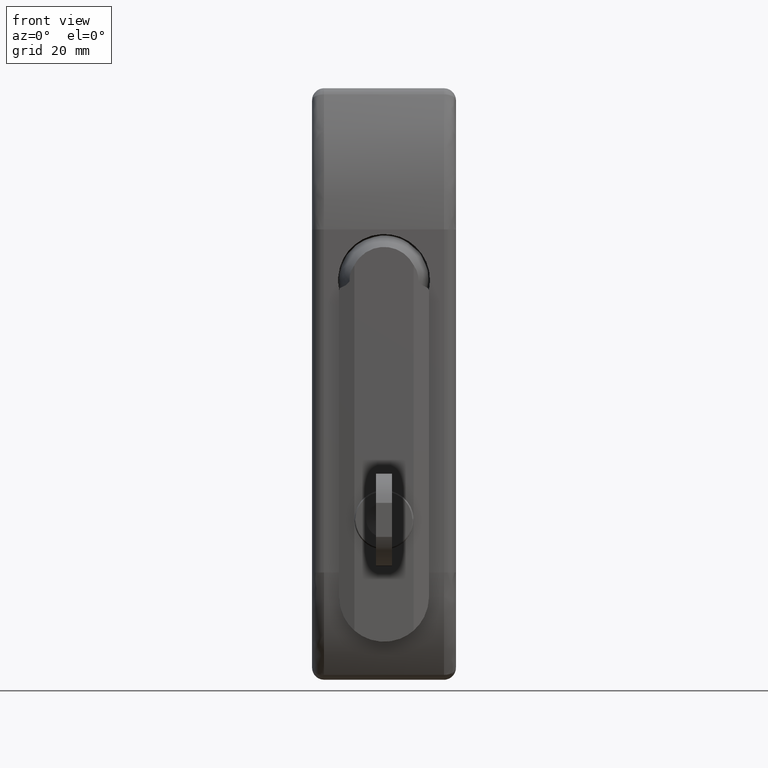
[diagram: clean part render]
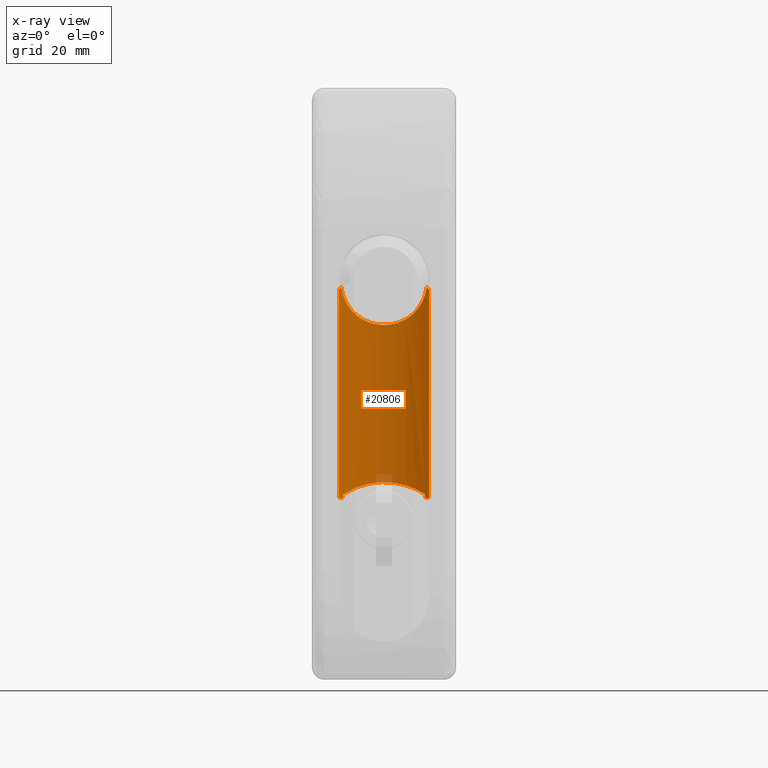
[diagram: x-ray — body ghosted, one internal face saturated and labeled with its STEP entity id]
A machine part, front view, then the same camera in x-ray: the body is ghosted and one INTERNAL B-rep face — a face not visible from any outside direction — is saturated and labeled: STEP entity #20806.
In plain terms, the highlighted face is a freeform B-spline surface patch.
Its self-contained STEP definition (entity closure, byte-faithful):
#20192=CARTESIAN_POINT('',(-10.684575626330240,-9.924582449700880,-30.098034766009349));
#20193=VERTEX_POINT('',#20192);
#20199=CARTESIAN_POINT('',(-11.250000000000000,-10.299999999999780,-30.998670111196152));
#20200=VERTEX_POINT('',#20199);
#20201=CARTESIAN_POINT('',(-11.250000000000000,-10.299999999999780,-30.998670111196152));
#20202=CARTESIAN_POINT('',(-11.250000000000011,-10.299999999999780,-30.898014862306550));
#20203=CARTESIAN_POINT('',(-11.235107902003250,-10.289713467947880,-30.800481930825239));
#20204=CARTESIAN_POINT('',(-11.191867623685150,-10.260095424611370,-30.659090352066311));
#20205=CARTESIAN_POINT('',(-11.174319938500080,-10.248103135369600,-30.614085594023550));
#20206=CARTESIAN_POINT('',(-11.133543723698420,-10.220363949491780,-30.527901497256341));
#20207=CARTESIAN_POINT('',(-11.110253436581560,-10.204575250670811,-30.486638649242639));
#20208=CARTESIAN_POINT('',(-11.032467774705840,-10.152140299422250,-30.368913845431809));
#20209=CARTESIAN_POINT('',(-10.972085965724739,-10.111791843752130,-30.301068481013480));
#20210=CARTESIAN_POINT('',(-10.836317090186871,-10.022410192647611,-30.183631188147110));
#20211=CARTESIAN_POINT('',(-10.762861120431049,-9.974651799822501,-30.135809174723530));
#20212=CARTESIAN_POINT('',(-10.684575626330240,-9.924582449700869,-30.098034766009452));
#20213=B_SPLINE_CURVE_WITH_KNOTS('',3,(#20201,#20202,#20203,#20204,#20205,#20206,#20207,#20208,#20209,#20210,#20211,#20212),.UNSPECIFIED.,.F.,.U.,(4,2,2,2,2,4),(0.0,0.250000000000005,0.375000000000007,0.500000000000009,0.750000000000004,1.0),.UNSPECIFIED.);
#20214=EDGE_CURVE('',#20200,#20193,#20213,.T.);
#20313=CARTESIAN_POINT('',(10.250000000000000,-9.654475297919881,-82.849999999997294));
#20314=VERTEX_POINT('',#20313);
#20323=CARTESIAN_POINT('',(10.250000000000000,-9.654475297919630,-81.849999999997294));
#20324=VERTEX_POINT('',#20323);
#20330=CARTESIAN_POINT('',(10.250000000000000,-9.654475297919881,-82.849999999997294));
#20331=CARTESIAN_POINT('',(10.250000000000000,-9.654475297919630,-81.849999999997294));
#20332=QUASI_UNIFORM_CURVE('',1,(#20330,#20331),.UNSPECIFIED.,.F.,.U.);
#20333=EDGE_CURVE('',#20314,#20324,#20332,.T.);
#20354=CARTESIAN_POINT('',(-10.250000000000000,-9.654475297919820,-81.849999999997294));
#20355=VERTEX_POINT('',#20354);
#20361=CARTESIAN_POINT('',(-10.250000000000000,-9.654475297919820,-81.849999999997294));
#20362=CARTESIAN_POINT('',(-9.538361291864314,-9.224789416207219,-81.394403065185656));
#20363=CARTESIAN_POINT('',(-8.789633059052802,-8.833438241366558,-80.981548758525207));
#20364=CARTESIAN_POINT('',(-7.605034500643767,-8.311166618198913,-80.432024187220463));
#20365=CARTESIAN_POINT('',(-7.199878326106386,-8.147905179384768,-80.260523864431505));
#20366=CARTESIAN_POINT('',(-6.575523507059780,-7.920610791255863,-80.022029249957455));
#20367=CARTESIAN_POINT('',(-6.364631455192290,-7.847782705514537,-79.945661329211077));
#20368=CARTESIAN_POINT('',(-6.043946044436363,-7.743154503620700,-79.836004868148748));
#20369=CARTESIAN_POINT('',(-5.936326055952771,-7.709047731075165,-79.800268958098073));
#20370=CARTESIAN_POINT('',(-5.719601421984231,-7.642411585935798,-79.730467359745376));
#20371=CARTESIAN_POINT('',(-5.610578036364391,-7.609910301570487,-79.696431115572736));
#20372=CARTESIAN_POINT('',(-4.627754698936696,-7.326114063975935,-79.399300810308560));
#20373=CARTESIAN_POINT('',(-3.734178971722286,-7.132860638250640,-79.197437211442804));
#20374=CARTESIAN_POINT('',(-2.362566142417454,-6.935822490633063,-78.991713444459620));
#20375=CARTESIAN_POINT('',(-1.900134377044954,-6.885670900091028,-78.939380384370111));
#20376=CARTESIAN_POINT('',(-1.198280151054671,-6.834847314651955,-78.886352467830008));
#20377=CARTESIAN_POINT('',(-0.962959435145621,-6.821977848608026,-78.872926723708204));
#20378=CARTESIAN_POINT('',(-0.607863262890874,-6.808964763707169,-78.859351566629968));
#20379=CARTESIAN_POINT('',(-0.488953759730555,-6.805673581651407,-78.855918352791093));
#20380=CARTESIAN_POINT('',(-0.251595334593891,-6.801240826976947,-78.851294337404212));
#20381=CARTESIAN_POINT('',(-0.133133169769200,-6.800094348993105,-78.850098418370294));
#20382=CARTESIAN_POINT('',(0.458104799473274,-6.799650538521388,-78.849635465846390));
#20383=CARTESIAN_POINT('',(0.927666811936397,-6.816196309379087,-78.866892965119888));
#20384=CARTESIAN_POINT('',(1.860171767200827,-6.881906665783935,-78.935452484092991));
#20385=CARTESIAN_POINT('',(2.323114220655559,-6.931073674714743,-78.986757009320485));
#20386=CARTESIAN_POINT('',(3.242503967764308,-7.061381777256798,-79.122805918159216));
#20387=CARTESIAN_POINT('',(3.698951071854099,-7.142523937400106,-79.207551150027413));
#20388=CARTESIAN_POINT('',(4.265464104785588,-7.263831732036604,-79.334347510353425));
#20389=CARTESIAN_POINT('',(4.378635067991453,-7.289107578060995,-79.360771375615087));
#20390=CARTESIAN_POINT('',(4.603423241998200,-7.341373907823672,-79.415422348196401));
#20391=CARTESIAN_POINT('',(4.938687105314152,-7.422429847319856,-79.500191999756240));
#20392=CARTESIAN_POINT('',(5.268317102753013,-7.511281551807135,-79.593169880197721));
#20393=CARTESIAN_POINT('',(6.355029819196898,-7.824105665724342,-79.920684437945781));
#20394=CARTESIAN_POINT('',(7.186051182653815,-8.127355731006407,-80.238638429061098));
#20395=CARTESIAN_POINT('',(8.181829097447961,-8.565250720239197,-80.699362850352202));
#20396=CARTESIAN_POINT('',(8.378981618729753,-8.655865770760734,-80.794773364879575));
#20397=CARTESIAN_POINT('',(8.768320832954588,-8.842546068333277,-80.991508461296206));
#20398=CARTESIAN_POINT('',(8.960085245787907,-8.938401303232402,-81.092611613808472));
#20399=CARTESIAN_POINT('',(9.526985080405153,-9.233199955259003,-81.403856109660595));
#20400=CARTESIAN_POINT('',(9.893739943267736,-9.439366261767210,-81.621919391132934));
#20401=CARTESIAN_POINT('',(10.250000000000000,-9.654475297919859,-81.849999999997294));
#20402=B_SPLINE_CURVE_WITH_KNOTS('',3,(#20361,#20362,#20363,#20364,#20365,#20366,#20367,#20368,#20369,#20370,#20371,#20372,#20373,#20374,#20375,#20376,#20377,#20378,#20379,#20380,#20381,#20382,#20383,#20384,#20385,#20386,#20387,#20388,#20389,#20390,#20391,#20392,#20393,#20394,#20395,#20396,#20397,#20398,#20399,#20400,#20401),.UNSPECIFIED.,.F.,.U.,(4,2,2,2,2,2,2,2,2,2,2,2,2,2,2,1,2,2,2,2,4),(0.0,0.125000000000002,0.187500000000002,0.218750000000003,0.234375000000003,0.250000000000003,0.375000000000002,0.437500000000001,0.468750000000001,0.484375000000001,0.500000000000000,0.562500000000000,0.624999999999999,0.687499999999998,0.703124999999998,0.718749999999998,0.749999999999998,0.874999999999998,0.906249999999999,0.937499999999999,1.0),.UNSPECIFIED.);
#20403=EDGE_CURVE('',#20355,#20324,#20402,.T.);
#20415=CARTESIAN_POINT('',(-10.250000000000000,-9.654475297919911,-82.849999999997294));
#20416=VERTEX_POINT('',#20415);
#20422=CARTESIAN_POINT('',(-10.250000000000000,-9.654475297919820,-81.849999999997294));
#20423=CARTESIAN_POINT('',(-10.250000000000000,-9.654475297919911,-82.849999999997294));
#20424=QUASI_UNIFORM_CURVE('',1,(#20422,#20423),.UNSPECIFIED.,.F.,.U.);
#20425=EDGE_CURVE('',#20355,#20416,#20424,.T.);
#20505=CARTESIAN_POINT('',(11.250000000000000,-10.300000000000001,-82.849999999997294));
#20506=VERTEX_POINT('',#20505);
#20514=CARTESIAN_POINT('',(10.249999999999989,-9.654475297919882,-82.849999999997294));
#20515=CARTESIAN_POINT('',(10.759690747465052,-9.962225446585943,-82.849999999997294));
#20516=CARTESIAN_POINT('',(11.250000000000060,-10.299999999999891,-82.849999999997294));
#20524=(BOUNDED_CURVE()B_SPLINE_CURVE(2,(#20514,#20515,#20516),.UNSPECIFIED.,.F.,.U.)CURVE()GEOMETRIC_REPRESENTATION_ITEM()QUASI_UNIFORM_CURVE()RATIONAL_B_SPLINE_CURVE((1.0,0.999549572070620,1.0))REPRESENTATION_ITEM(''));
#20525=EDGE_CURVE('',#20314,#20506,#20524,.T.);
#20537=CARTESIAN_POINT('',(-11.250000000000000,-10.299999999999780,-82.849999999997294));
#20538=VERTEX_POINT('',#20537);
#20544=CARTESIAN_POINT('',(-11.249999999999970,-10.299999999999830,-82.849999999997294));
#20545=CARTESIAN_POINT('',(-10.759690747464996,-9.962225446585903,-82.849999999997294));
#20546=CARTESIAN_POINT('',(-10.250000000000020,-9.654475297919893,-82.849999999997294));
#20554=(BOUNDED_CURVE()B_SPLINE_CURVE(2,(#20544,#20545,#20546),.UNSPECIFIED.,.F.,.U.)CURVE()GEOMETRIC_REPRESENTATION_ITEM()QUASI_UNIFORM_CURVE()RATIONAL_B_SPLINE_CURVE((1.0,0.999549572070620,1.0))REPRESENTATION_ITEM(''));
#20555=EDGE_CURVE('',#20538,#20416,#20554,.T.);
#20572=CARTESIAN_POINT('',(-11.250000000000000,-10.299999999999780,-30.998670111196152));
#20573=CARTESIAN_POINT('',(-11.250000000000000,-10.299999999999780,-82.849999999997294));
#20574=QUASI_UNIFORM_CURVE('',1,(#20572,#20573),.UNSPECIFIED.,.F.,.U.);
#20575=EDGE_CURVE('',#20200,#20538,#20574,.T.);
#20596=CARTESIAN_POINT('',(-10.678615359158099,-9.920771916873139,-30.095158810881451));
#20597=VERTEX_POINT('',#20596);
#20611=CARTESIAN_POINT('',(-10.684575626330220,-9.924582449700875,-30.098034766009331));
#20612=CARTESIAN_POINT('',(-10.681595832585169,-9.922676651723553,-30.096596952425838));
#20613=CARTESIAN_POINT('',(-10.678615359158091,-9.920771916873134,-30.095158810881362));
#20621=(BOUNDED_CURVE()B_SPLINE_CURVE(2,(#20611,#20612,#20613),.UNSPECIFIED.,.F.,.U.)CURVE()GEOMETRIC_REPRESENTATION_ITEM()QUASI_UNIFORM_CURVE()RATIONAL_B_SPLINE_CURVE((1.0,0.999999984369625,1.0))REPRESENTATION_ITEM(''));
#20622=EDGE_CURVE('',#20193,#20597,#20621,.T.);
#20651=CARTESIAN_POINT('',(11.684509885826170,-10.608019824559911,-28.776287781153250));
#20652=CARTESIAN_POINT('',(11.684509885826170,-10.608019824559911,-84.201842805468416));
#20653=CARTESIAN_POINT('',(-0.367118777601555,-1.819203844676778,-28.776287781153247));
#20654=CARTESIAN_POINT('',(-0.367118777601555,-1.819203844676778,-84.201842805468402));
#20655=CARTESIAN_POINT('',(-12.153440610693195,-10.960738585418575,-28.776287781153240));
#20656=CARTESIAN_POINT('',(-12.153440610693195,-10.960738585418575,-84.201842805468416));
#20664=(BOUNDED_SURFACE()B_SPLINE_SURFACE(1,2,((#20651,#20653,#20655),(#20652,#20654,#20656)),.UNSPECIFIED.,.F.,.F.,.U.)B_SPLINE_SURFACE_WITH_KNOTS((2,2),(3,3),(0.0,55.425555024315180),(0.0,26.501815270350239),.UNSPECIFIED.)GEOMETRIC_REPRESENTATION_ITEM()RATIONAL_B_SPLINE_SURFACE(((1.0,0.798929562094057,0.999412754713367),(1.0,0.798929562094057,0.999412754713367)))REPRESENTATION_ITEM('')SURFACE());
#20665=ORIENTED_EDGE('',*,*,#20622,.T.);
#20666=CARTESIAN_POINT('',(10.678615359158140,-9.920771916873161,-30.095158810881149));
#20667=VERTEX_POINT('',#20666);
#20668=CARTESIAN_POINT('',(-10.678615359158099,-9.920771916873131,-30.095158810881451));
#20669=CARTESIAN_POINT('',(-10.631021573617421,-9.890356097305993,-30.420396388976322));
#20670=CARTESIAN_POINT('',(-10.570803262406359,-9.852138650620608,-30.743068664540001));
#20671=CARTESIAN_POINT('',(-10.461087863820440,-9.783679032267688,-31.223215404583190));
#20672=CARTESIAN_POINT('',(-10.421278934623199,-9.759003597830628,-31.382619856794150));
#20673=CARTESIAN_POINT('',(-10.356599250705139,-9.719279219233480,-31.620750285541881));
#20674=CARTESIAN_POINT('',(-10.334211253671940,-9.705585900144316,-31.699964331226631));
#20675=CARTESIAN_POINT('',(-10.287755820016480,-9.677307740422315,-31.858064615282050));
#20676=CARTESIAN_POINT('',(-10.263671870605741,-9.662713133124303,-31.936995655338482));
#20677=CARTESIAN_POINT('',(-10.040406284323961,-9.528105590713524,-32.642333337500098));
#20678=CARTESIAN_POINT('',(-9.794363504149992,-9.384320987488595,-33.239775183343532));
#20679=CARTESIAN_POINT('',(-9.353223494039964,-9.143552447275450,-34.094259883594461));
#20680=CARTESIAN_POINT('',(-9.194086240545616,-9.059100961955121,-34.372100356373458));
#20681=CARTESIAN_POINT('',(-8.936450969041763,-8.927470124598374,-34.778349474082283));
#20682=CARTESIAN_POINT('',(-8.847412688693368,-8.882767610141242,-34.912011514728107));
#20683=CARTESIAN_POINT('',(-8.662820211130200,-8.791938168759311,-35.175791800037857));
#20684=CARTESIAN_POINT('',(-8.567610599790346,-8.745984897036744,-35.305394832484922));
#20685=CARTESIAN_POINT('',(-8.079479772407881,-8.515402197410333,-35.938843105444903));
#20686=CARTESIAN_POINT('',(-7.648229106704954,-8.327197436941033,-36.402728082662101));
#20687=CARTESIAN_POINT('',(-6.937940519864580,-8.051537331711861,-37.036958356682952));
#20688=CARTESIAN_POINT('',(-6.690552451402221,-7.960748130665716,-37.238040738637991));
#20689=CARTESIAN_POINT('',(-6.367319896217280,-7.849915926661139,-37.476285168489127));
#20690=CARTESIAN_POINT('',(-6.301972086499350,-7.827882433262628,-37.523277276875092));
#20691=CARTESIAN_POINT('',(-6.169849955952473,-7.784114575570912,-37.615937346634247));
#20692=CARTESIAN_POINT('',(-6.103021067757704,-7.762363761680561,-37.661638824745282));
#20693=CARTESIAN_POINT('',(-5.901440189348031,-7.697951801902709,-37.796030993410902));
#20694=CARTESIAN_POINT('',(-5.765279526733072,-7.656024339313021,-37.882239601056973));
#20695=CARTESIAN_POINT('',(-5.075661786225274,-7.451938412182918,-38.296715398802448));
#20696=CARTESIAN_POINT('',(-4.495966844421091,-7.306418627277433,-38.575725470160428));
#20697=CARTESIAN_POINT('',(-3.582999061308267,-7.123909607705410,-38.916945782517153));
#20698=CARTESIAN_POINT('',(-3.271399673201216,-7.069036793041329,-39.017717887943313));
#20699=CARTESIAN_POINT('',(-2.872309001243609,-7.008955033376244,-39.126923377631812));
#20700=CARTESIAN_POINT('',(-2.791909391335388,-6.997351770536082,-39.147947547592352));
#20701=CARTESIAN_POINT('',(-2.631032892037271,-6.975146029261022,-39.188076392219571));
#20702=CARTESIAN_POINT('',(-2.389360729969992,-6.943298572931575,-39.245462890001761));
#20703=CARTESIAN_POINT('',(-2.146625497068132,-6.915853140842827,-39.294532494073543));
#20704=CARTESIAN_POINT('',(-1.659753487090429,-6.866888282288065,-39.381775393617872));
#20705=CARTESIAN_POINT('',(-1.333306281972363,-6.842142944869421,-39.425436005351948));
#20706=CARTESIAN_POINT('',(-0.676694308908974,-6.808823105369528,-39.484108535004808));
#20707=CARTESIAN_POINT('',(-0.346529696079474,-6.800247523050325,-39.499121420985752));
#20708=CARTESIAN_POINT('',(0.151564930168576,-6.799884153721171,-39.499758727278191));
#20709=CARTESIAN_POINT('',(0.318071833184422,-6.801847421994142,-39.496317213167167));
#20710=CARTESIAN_POINT('',(0.568559855751598,-6.807976361005101,-39.485557839286493));
#20711=CARTESIAN_POINT('',(0.652301186455663,-6.810555301894516,-39.481028889720378));
#20712=CARTESIAN_POINT('',(0.819248291847845,-6.816753884257727,-39.470134109453518));
#20713=CARTESIAN_POINT('',(0.902471174247298,-6.820371980338475,-39.463770995409583));
#20714=CARTESIAN_POINT('',(1.317347724772913,-6.841014290557044,-39.427427795725428));
#20715=CARTESIAN_POINT('',(1.645296070826217,-6.865687434836865,-39.383900825288293));
#20716=CARTESIAN_POINT('',(2.293545713327226,-6.930387196466644,-39.268650043418631));
#20717=CARTESIAN_POINT('',(2.613846269923262,-6.970416007417001,-39.196923894963113));
#20718=CARTESIAN_POINT('',(3.246861371403184,-7.064995684232031,-39.025108405862213));
#20719=CARTESIAN_POINT('',(3.559575952433626,-7.119548554910668,-38.925020345568633));
#20720=CARTESIAN_POINT('',(4.177295859311042,-7.242411609087649,-38.695467701407999));
#20721=CARTESIAN_POINT('',(4.477445463137869,-7.309749966623940,-38.567801785240917));
#20722=CARTESIAN_POINT('',(5.060854010685270,-7.454300816901626,-38.287577091955882));
#20723=CARTESIAN_POINT('',(5.344176490375343,-7.531530448477963,-38.134990107762263));
#20724=CARTESIAN_POINT('',(5.894548226552169,-7.694156239110322,-37.804878312722131));
#20725=CARTESIAN_POINT('',(6.161596346144572,-7.779555783840408,-37.627353152363249));
#20726=CARTESIAN_POINT('',(6.485304009949526,-7.890331032307175,-37.389448703193267));
#20727=CARTESIAN_POINT('',(6.549539527805104,-7.912687257659735,-37.341066270477633));
#20728=CARTESIAN_POINT('',(6.676996708372443,-7.957774329708583,-37.242681350193493));
#20729=CARTESIAN_POINT('',(6.740279474084535,-7.980528097735720,-37.192627282129692));
#20730=CARTESIAN_POINT('',(6.927761005707370,-8.048998274031975,-37.040699328129357));
#20731=CARTESIAN_POINT('',(7.049813305698664,-8.094997873583845,-36.936901326681728));
#20732=CARTESIAN_POINT('',(7.645843367010841,-8.326103888819782,-36.405494005112310));
#20733=CARTESIAN_POINT('',(8.077456839625837,-8.514533640621174,-35.940930449181991));
#20734=CARTESIAN_POINT('',(8.564035870164883,-8.744274966008522,-35.310165412699433));
#20735=CARTESIAN_POINT('',(8.658684734459513,-8.789932516461860,-35.181490911550718));
#20736=CARTESIAN_POINT('',(8.842659107140682,-8.880400745847169,-34.919004821201121));
#20737=CARTESIAN_POINT('',(8.932088320409324,-8.925264569635667,-34.785029195251042));
#20738=CARTESIAN_POINT('',(9.191684516507781,-9.057828535143360,-34.376273863908253));
#20739=CARTESIAN_POINT('',(9.351578363072267,-9.142668452781050,-34.097271495396598));
#20740=CARTESIAN_POINT('',(9.793877223136573,-9.384027965171198,-33.241064861240190));
#20741=CARTESIAN_POINT('',(10.039210363943059,-9.527418888923622,-32.644801922685829));
#20742=CARTESIAN_POINT('',(10.286086856027771,-9.676218852139476,-31.866501035990961));
#20743=CARTESIAN_POINT('',(10.332447554876749,-9.704454624059373,-31.709180935088110));
#20744=CARTESIAN_POINT('',(10.419089072096540,-9.757650440675608,-31.391144348957930));
#20745=CARTESIAN_POINT('',(10.459412995299539,-9.782638082441997,-31.230177189241971));
#20746=CARTESIAN_POINT('',(10.570164867503131,-9.851732276269940,-30.746578787568069));
#20747=CARTESIAN_POINT('',(10.630792101886000,-9.890209448521933,-30.421964510303869));
#20748=CARTESIAN_POINT('',(10.678615359158140,-9.920771916873163,-30.095158810881141));
#20749=B_SPLINE_CURVE_WITH_KNOTS('',3,(#20668,#20669,#20670,#20671,#20672,#20673,#20674,#20675,#20676,#20677,#20678,#20679,#20680,#20681,#20682,#20683,#20684,#20685,#20686,#20687,#20688,#20689,#20690,#20691,#20692,#20693,#20694,#20695,#20696,#20697,#20698,#20699,#20700,#20701,#20702,#20703,#20704,#20705,#20706,#20707,#20708,#20709,#20710,#20711,#20712,#20713,#20714,#20715,#20716,#20717,#20718,#20719,#20720,#20721,#20722,#20723,#20724,#20725,#20726,#20727,#20728,#20729,#20730,#20731,#20732,#20733,#20734,#20735,#20736,#20737,#20738,#20739,#20740,#20741,#20742,#20743,#20744,#20745,#20746,#20747,#20748),.UNSPECIFIED.,.F.,.U.,(4,2,2,2,2,2,2,2,2,2,2,2,2,2,2,2,2,1,2,2,2,2,2,2,2,2,2,2,2,2,2,2,2,2,2,2,2,2,2,2,4),(0.0,0.031250000000001,0.046875000000001,0.054687500000002,0.062500000000002,0.125000000000006,0.156250000000008,0.171875000000009,0.187500000000010,0.250000000000012,0.281250000000013,0.289062500000013,0.296875000000013,0.312500000000013,0.375000000000014,0.406250000000014,0.414062500000014,0.421875000000014,0.437500000000014,0.468750000000014,0.500000000000014,0.515625000000014,0.523437500000014,0.531250000000014,0.562500000000014,0.593750000000015,0.625000000000015,0.656250000000015,0.687500000000015,0.718750000000016,0.726562500000016,0.734375000000016,0.750000000000016,0.812500000000014,0.828125000000013,0.843750000000012,0.875000000000010,0.937500000000005,0.953125000000004,0.968750000000003,1.0),.UNSPECIFIED.);
#20750=EDGE_CURVE('',#20597,#20667,#20749,.T.);
#20751=ORIENTED_EDGE('',*,*,#20750,.T.);
#20752=CARTESIAN_POINT('',(10.684575626330540,-9.924582449701070,-30.098034766009299));
#20753=VERTEX_POINT('',#20752);
#20754=CARTESIAN_POINT('',(10.684575626330520,-9.924582449701076,-30.098034766009270));
#20755=CARTESIAN_POINT('',(10.681595832585865,-9.922676651724004,-30.096596952425958));
#20756=CARTESIAN_POINT('',(10.678615359158110,-9.920771916873155,-30.095158810881159));
#20764=(BOUNDED_CURVE()B_SPLINE_CURVE(2,(#20754,#20755,#20756),.UNSPECIFIED.,.F.,.U.)CURVE()GEOMETRIC_REPRESENTATION_ITEM()QUASI_UNIFORM_CURVE()RATIONAL_B_SPLINE_CURVE((1.0,0.999999981431271,1.0))REPRESENTATION_ITEM(''));
#20765=EDGE_CURVE('',#20753,#20667,#20764,.T.);
#20766=ORIENTED_EDGE('',*,*,#20765,.F.);
#20767=CARTESIAN_POINT('',(11.250000000000000,-10.300000000000001,-30.998670111196049));
#20768=VERTEX_POINT('',#20767);
#20769=CARTESIAN_POINT('',(10.684575626330499,-9.924582449701070,-30.098034766009349));
#20770=CARTESIAN_POINT('',(10.762958293788300,-9.974713949354870,-30.135856062925999));
#20771=CARTESIAN_POINT('',(10.835972044084849,-10.022187970349270,-30.183464337082341));
#20772=CARTESIAN_POINT('',(10.920207803603880,-10.077637343645000,-30.256163053552200));
#20773=CARTESIAN_POINT('',(10.936697419630800,-10.088528718015320,-30.271373887993651));
#20774=CARTESIAN_POINT('',(10.968926503466690,-10.109882287484190,-30.303214990411671));
#20775=CARTESIAN_POINT('',(10.984680000425900,-10.120354099651580,-30.319870873122220));
#20776=CARTESIAN_POINT('',(11.030078908863119,-10.150619680807070,-30.371319068725899));
#20777=CARTESIAN_POINT('',(11.058109896692489,-10.169426740142100,-30.407803165587680));
#20778=CARTESIAN_POINT('',(11.109488992468281,-10.204058760793620,-30.485402126249809));
#20779=CARTESIAN_POINT('',(11.132870234964610,-10.219906457091030,-30.526573424868019));
#20780=CARTESIAN_POINT('',(11.174276764889211,-10.248073109176749,-30.613900576390741));
#20781=CARTESIAN_POINT('',(11.191757293396259,-10.260020234773890,-30.658899024622560));
#20782=CARTESIAN_POINT('',(11.220212263101811,-10.279510113746360,-30.751608670531500));
#20783=CARTESIAN_POINT('',(11.231189739229571,-10.287055038955099,-30.799318579906348));
#20784=CARTESIAN_POINT('',(11.242394751262390,-10.294762717760859,-30.873086505513989));
#20785=CARTESIAN_POINT('',(11.245251656331090,-10.296729716375991,-30.898138852963001));
#20786=CARTESIAN_POINT('',(11.249046681263520,-10.299343136247860,-30.948290333824112));
#20787=CARTESIAN_POINT('',(11.250000000000000,-10.300000000000001,-30.973441919537478));
#20788=CARTESIAN_POINT('',(11.250000000000000,-10.300000000000001,-30.998670111196049));
#20789=B_SPLINE_CURVE_WITH_KNOTS('',3,(#20769,#20770,#20771,#20772,#20773,#20774,#20775,#20776,#20777,#20778,#20779,#20780,#20781,#20782,#20783,#20784,#20785,#20786,#20787,#20788),.UNSPECIFIED.,.F.,.U.,(4,2,2,2,2,2,2,2,2,4),(0.0,0.250000000000000,0.312500000000001,0.375000000000003,0.500000000000004,0.625000000000005,0.750000000000006,0.875000000000007,0.937500000000003,1.0),.UNSPECIFIED.);
#20790=EDGE_CURVE('',#20753,#20768,#20789,.T.);
#20791=ORIENTED_EDGE('',*,*,#20790,.T.);
#20792=CARTESIAN_POINT('',(11.250000000000000,-10.300000000000001,-30.998670111196049));
#20793=CARTESIAN_POINT('',(11.250000000000000,-10.300000000000001,-82.849999999997294));
#20794=QUASI_UNIFORM_CURVE('',1,(#20792,#20793),.UNSPECIFIED.,.F.,.U.);
#20795=EDGE_CURVE('',#20768,#20506,#20794,.T.);
#20796=ORIENTED_EDGE('',*,*,#20795,.T.);
#20797=ORIENTED_EDGE('',*,*,#20525,.F.);
#20798=ORIENTED_EDGE('',*,*,#20333,.T.);
#20799=ORIENTED_EDGE('',*,*,#20403,.F.);
#20800=ORIENTED_EDGE('',*,*,#20425,.T.);
#20801=ORIENTED_EDGE('',*,*,#20555,.F.);
#20802=ORIENTED_EDGE('',*,*,#20575,.F.);
#20803=ORIENTED_EDGE('',*,*,#20214,.T.);
#20804=EDGE_LOOP('',(#20665,#20751,#20766,#20791,#20796,#20797,#20798,#20799,#20800,#20801,#20802,#20803));
#20805=FACE_OUTER_BOUND('',#20804,.T.);
#20806=ADVANCED_FACE('',(#20805),#20664,.T.);